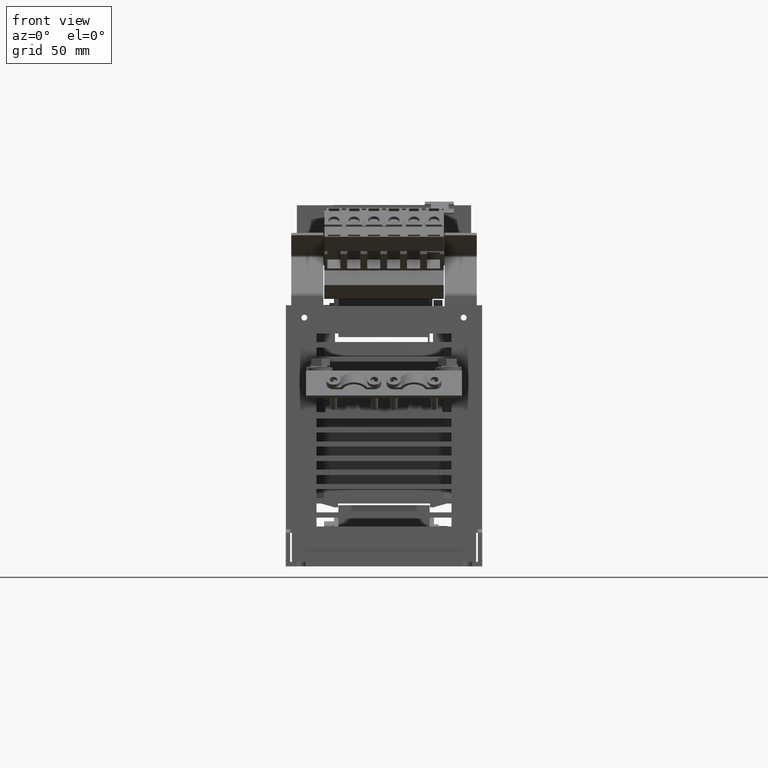
[diagram: clean part render]
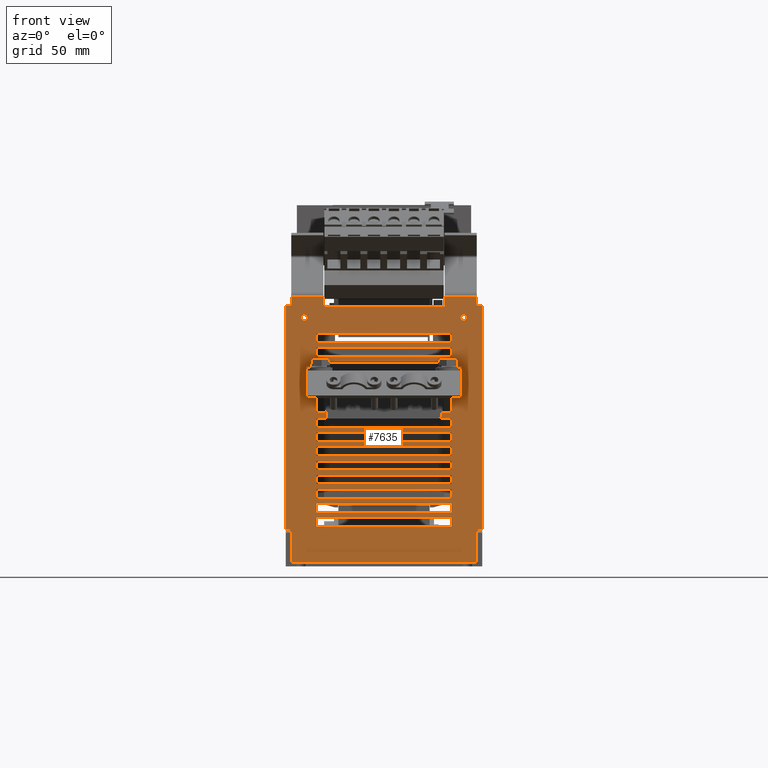
[diagram: same view with one face highlighted and labeled with its STEP entity id]
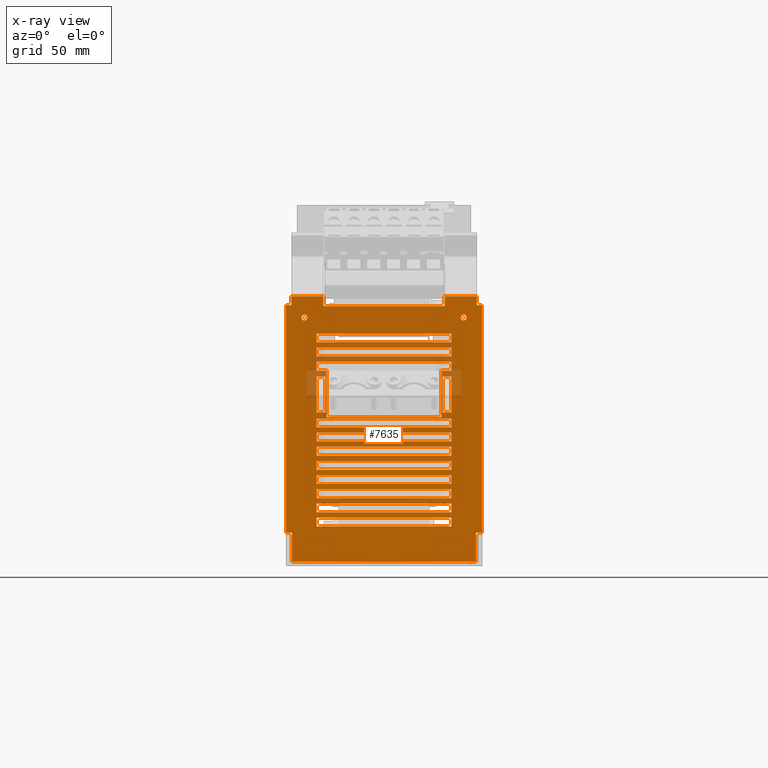
[diagram: x-ray of the same camera — body ghosted, the highlighted face saturated]
A machine part, front view. The second image highlights one B-rep face of the part: STEP entity #7635.
The next image is the same camera in x-ray: the body ghosted, the highlighted face saturated — about 3% of this face is hidden behind the body in this view.
In plain terms, the highlighted planar face has unit normal (0, 1, 0).
Its self-contained STEP definition (entity closure, byte-faithful):
#114=DIRECTION('',(0.E0,0.E0,1.E0));
#115=VECTOR('',#114,2.634595519445E1);
#116=CARTESIAN_POINT('',(3.25E1,-1.21E2,8.165E1));
#117=LINE('',#116,#115);
#926=DIRECTION('',(0.E0,0.E0,-1.E0));
#927=VECTOR('',#926,2.634595519445E1);
#928=CARTESIAN_POINT('',(-3.25E1,-1.21E2,1.079959551945E2));
#929=LINE('',#928,#927);
#990=DIRECTION('',(1.E0,0.E0,0.E0));
#991=VECTOR('',#990,7.62E1);
#992=CARTESIAN_POINT('',(-3.81E1,-1.21E2,2.5E1));
#993=LINE('',#992,#991);
#994=DIRECTION('',(0.E0,0.E0,1.E0));
#995=VECTOR('',#994,5.E0);
#996=CARTESIAN_POINT('',(-3.81E1,-1.21E2,2.E1));
#997=LINE('',#996,#995);
#998=DIRECTION('',(-1.E0,0.E0,0.E0));
#999=VECTOR('',#998,7.62E1);
#1000=CARTESIAN_POINT('',(3.81E1,-1.21E2,2.E1));
#1001=LINE('',#1000,#999);
#1002=DIRECTION('',(0.E0,0.E0,-1.E0));
#1003=VECTOR('',#1002,5.E0);
#1004=CARTESIAN_POINT('',(3.81E1,-1.21E2,2.5E1));
#1005=LINE('',#1004,#1003);
#1006=DIRECTION('',(1.E0,0.E0,0.E0));
#1007=VECTOR('',#1006,7.62E1);
#1008=CARTESIAN_POINT('',(-3.81E1,-1.21E2,3.3E1));
#1009=LINE('',#1008,#1007);
#1010=DIRECTION('',(0.E0,0.E0,1.E0));
#1011=VECTOR('',#1010,5.E0);
#1012=CARTESIAN_POINT('',(-3.81E1,-1.21E2,2.8E1));
#1013=LINE('',#1012,#1011);
#1014=DIRECTION('',(-1.E0,0.E0,0.E0));
#1015=VECTOR('',#1014,7.62E1);
#1016=CARTESIAN_POINT('',(3.81E1,-1.21E2,2.8E1));
#1017=LINE('',#1016,#1015);
#1018=DIRECTION('',(0.E0,0.E0,-1.E0));
#1019=VECTOR('',#1018,5.E0);
#1020=CARTESIAN_POINT('',(3.81E1,-1.21E2,3.3E1));
#1021=LINE('',#1020,#1019);
#1022=DIRECTION('',(1.E0,0.E0,0.E0));
#1023=VECTOR('',#1022,7.62E1);
#1024=CARTESIAN_POINT('',(-3.81E1,-1.21E2,4.1E1));
#1025=LINE('',#1024,#1023);
#1026=DIRECTION('',(0.E0,0.E0,1.E0));
#1027=VECTOR('',#1026,5.E0);
#1028=CARTESIAN_POINT('',(-3.81E1,-1.21E2,3.6E1));
#1029=LINE('',#1028,#1027);
#1030=DIRECTION('',(-1.E0,0.E0,0.E0));
#1031=VECTOR('',#1030,7.62E1);
#1032=CARTESIAN_POINT('',(3.81E1,-1.21E2,3.6E1));
#1033=LINE('',#1032,#1031);
#1034=DIRECTION('',(0.E0,0.E0,-1.E0));
#1035=VECTOR('',#1034,5.E0);
#1036=CARTESIAN_POINT('',(3.81E1,-1.21E2,4.1E1));
#1037=LINE('',#1036,#1035);
#1038=DIRECTION('',(1.E0,0.E0,0.E0));
#1039=VECTOR('',#1038,7.62E1);
#1040=CARTESIAN_POINT('',(-3.81E1,-1.21E2,4.9E1));
#1041=LINE('',#1040,#1039);
#1042=DIRECTION('',(0.E0,0.E0,1.E0));
#1043=VECTOR('',#1042,5.E0);
#1044=CARTESIAN_POINT('',(-3.81E1,-1.21E2,4.4E1));
#1045=LINE('',#1044,#1043);
#1046=DIRECTION('',(-1.E0,0.E0,0.E0));
#1047=VECTOR('',#1046,7.62E1);
#1048=CARTESIAN_POINT('',(3.81E1,-1.21E2,4.4E1));
#1049=LINE('',#1048,#1047);
#1050=DIRECTION('',(0.E0,0.E0,-1.E0));
#1051=VECTOR('',#1050,5.E0);
#1052=CARTESIAN_POINT('',(3.81E1,-1.21E2,4.9E1));
#1053=LINE('',#1052,#1051);
#1054=DIRECTION('',(1.E0,0.E0,0.E0));
#1055=VECTOR('',#1054,7.62E1);
#1056=CARTESIAN_POINT('',(-3.81E1,-1.21E2,5.7E1));
#1057=LINE('',#1056,#1055);
#1058=DIRECTION('',(0.E0,0.E0,1.E0));
#1059=VECTOR('',#1058,5.E0);
#1060=CARTESIAN_POINT('',(-3.81E1,-1.21E2,5.2E1));
#1061=LINE('',#1060,#1059);
#1062=DIRECTION('',(-1.E0,0.E0,0.E0));
#1063=VECTOR('',#1062,7.62E1);
#1064=CARTESIAN_POINT('',(3.81E1,-1.21E2,5.2E1));
#1065=LINE('',#1064,#1063);
#1066=DIRECTION('',(0.E0,0.E0,-1.E0));
#1067=VECTOR('',#1066,5.E0);
#1068=CARTESIAN_POINT('',(3.81E1,-1.21E2,5.7E1));
#1069=LINE('',#1068,#1067);
#1070=DIRECTION('',(1.E0,0.E0,0.E0));
#1071=VECTOR('',#1070,7.62E1);
#1072=CARTESIAN_POINT('',(-3.81E1,-1.21E2,6.5E1));
#1073=LINE('',#1072,#1071);
#1074=DIRECTION('',(0.E0,0.E0,1.E0));
#1075=VECTOR('',#1074,5.E0);
#1076=CARTESIAN_POINT('',(-3.81E1,-1.21E2,6.E1));
#1077=LINE('',#1076,#1075);
#1078=DIRECTION('',(-1.E0,0.E0,0.E0));
#1079=VECTOR('',#1078,7.62E1);
#1080=CARTESIAN_POINT('',(3.81E1,-1.21E2,6.E1));
#1081=LINE('',#1080,#1079);
#1082=DIRECTION('',(0.E0,0.E0,-1.E0));
#1083=VECTOR('',#1082,5.E0);
#1084=CARTESIAN_POINT('',(3.81E1,-1.21E2,6.5E1));
#1085=LINE('',#1084,#1083);
#1086=DIRECTION('',(1.E0,0.E0,0.E0));
#1087=VECTOR('',#1086,7.62E1);
#1088=CARTESIAN_POINT('',(-3.81E1,-1.21E2,7.3E1));
#1089=LINE('',#1088,#1087);
#1090=DIRECTION('',(0.E0,0.E0,1.E0));
#1091=VECTOR('',#1090,5.E0);
#1092=CARTESIAN_POINT('',(-3.81E1,-1.21E2,6.8E1));
#1093=LINE('',#1092,#1091);
#1094=DIRECTION('',(-1.E0,0.E0,0.E0));
#1095=VECTOR('',#1094,7.62E1);
#1096=CARTESIAN_POINT('',(3.81E1,-1.21E2,6.8E1));
#1097=LINE('',#1096,#1095);
#1098=DIRECTION('',(0.E0,0.E0,-1.E0));
#1099=VECTOR('',#1098,5.E0);
#1100=CARTESIAN_POINT('',(3.81E1,-1.21E2,7.3E1));
#1101=LINE('',#1100,#1099);
#1102=DIRECTION('',(1.E0,0.E0,0.E0));
#1103=VECTOR('',#1102,7.62E1);
#1104=CARTESIAN_POINT('',(-3.81E1,-1.21E2,8.1E1));
#1105=LINE('',#1104,#1103);
#1106=DIRECTION('',(0.E0,0.E0,1.E0));
#1107=VECTOR('',#1106,5.E0);
#1108=CARTESIAN_POINT('',(-3.81E1,-1.21E2,7.6E1));
#1109=LINE('',#1108,#1107);
#1110=DIRECTION('',(-1.E0,0.E0,0.E0));
#1111=VECTOR('',#1110,7.62E1);
#1112=CARTESIAN_POINT('',(3.81E1,-1.21E2,7.6E1));
#1113=LINE('',#1112,#1111);
#1114=DIRECTION('',(0.E0,0.E0,-1.E0));
#1115=VECTOR('',#1114,5.E0);
#1116=CARTESIAN_POINT('',(3.81E1,-1.21E2,8.1E1));
#1117=LINE('',#1116,#1115);
#1118=DIRECTION('',(1.E0,0.E0,0.E0));
#1119=VECTOR('',#1118,7.62E1);
#1120=CARTESIAN_POINT('',(-3.81E1,-1.21E2,1.21E2));
#1121=LINE('',#1120,#1119);
#1122=DIRECTION('',(0.E0,0.E0,1.E0));
#1123=VECTOR('',#1122,5.E0);
#1124=CARTESIAN_POINT('',(-3.81E1,-1.21E2,1.16E2));
#1125=LINE('',#1124,#1123);
#1126=DIRECTION('',(-1.E0,0.E0,0.E0));
#1127=VECTOR('',#1126,7.62E1);
#1128=CARTESIAN_POINT('',(3.81E1,-1.21E2,1.16E2));
#1129=LINE('',#1128,#1127);
#1130=DIRECTION('',(0.E0,0.E0,-1.E0));
#1131=VECTOR('',#1130,5.E0);
#1132=CARTESIAN_POINT('',(3.81E1,-1.21E2,1.21E2));
#1133=LINE('',#1132,#1131);
#1134=DIRECTION('',(1.E0,0.E0,0.E0));
#1135=VECTOR('',#1134,7.62E1);
#1136=CARTESIAN_POINT('',(-3.81E1,-1.21E2,1.29E2));
#1137=LINE('',#1136,#1135);
#1138=DIRECTION('',(0.E0,0.E0,1.E0));
#1139=VECTOR('',#1138,5.E0);
#1140=CARTESIAN_POINT('',(-3.81E1,-1.21E2,1.24E2));
#1141=LINE('',#1140,#1139);
#1142=DIRECTION('',(-1.E0,0.E0,0.E0));
#1143=VECTOR('',#1142,7.62E1);
#1144=CARTESIAN_POINT('',(3.81E1,-1.21E2,1.24E2));
#1145=LINE('',#1144,#1143);
#1146=DIRECTION('',(0.E0,0.E0,-1.E0));
#1147=VECTOR('',#1146,5.E0);
#1148=CARTESIAN_POINT('',(3.81E1,-1.21E2,1.29E2));
#1149=LINE('',#1148,#1147);
#1150=CARTESIAN_POINT('',(-4.5E1,-1.21E2,1.38E2));
#1151=DIRECTION('',(0.E0,1.E0,0.E0));
#1152=DIRECTION('',(1.E0,0.E0,0.E0));
#1153=AXIS2_PLACEMENT_3D('',#1150,#1151,#1152);
#1155=CARTESIAN_POINT('',(-4.5E1,-1.21E2,1.38E2));
#1156=DIRECTION('',(0.E0,1.E0,0.E0));
#1157=DIRECTION('',(-1.E0,0.E0,0.E0));
#1158=AXIS2_PLACEMENT_3D('',#1155,#1156,#1157);
#1160=CARTESIAN_POINT('',(4.5E1,-1.21E2,1.38E2));
#1161=DIRECTION('',(0.E0,1.E0,0.E0));
#1162=DIRECTION('',(1.E0,0.E0,0.E0));
#1163=AXIS2_PLACEMENT_3D('',#1160,#1161,#1162);
#1165=CARTESIAN_POINT('',(4.5E1,-1.21E2,1.38E2));
#1166=DIRECTION('',(0.E0,1.E0,0.E0));
#1167=DIRECTION('',(-1.E0,0.E0,0.E0));
#1168=AXIS2_PLACEMENT_3D('',#1165,#1166,#1167);
#1170=DIRECTION('',(2.666657185233E-3,0.E0,9.999964444634E-1));
#1171=VECTOR('',#1170,5.000017777746E0);
#1172=CARTESIAN_POINT('',(5.238666666667E1,-1.21E2,1.45E2));
#1173=LINE('',#1172,#1171);
#1174=DIRECTION('',(0.E0,0.E0,-1.E0));
#1175=VECTOR('',#1174,1.285E2);
#1176=CARTESIAN_POINT('',(5.54E1,-1.21E2,1.45E2));
#1177=LINE('',#1176,#1175);
#1178=DIRECTION('',(-1.E0,-2.540677243481E-14,0.E0));
#1179=VECTOR('',#1178,3.356E0);
#1180=CARTESIAN_POINT('',(5.54E1,-1.21E2,1.65E1));
#1181=LINE('',#1180,#1179);
#1182=DIRECTION('',(-2.666657185235E-3,0.E0,-9.999964444634E-1));
#1183=VECTOR('',#1182,1.650005866656E1);
#1184=CARTESIAN_POINT('',(5.2044E1,-1.21E2,1.65E1));
#1185=LINE('',#1184,#1183);
#1186=DIRECTION('',(-2.666657185236E-3,0.E0,9.999964444634E-1));
#1187=VECTOR('',#1186,1.650005866656E1);
#1188=CARTESIAN_POINT('',(-5.2E1,-1.21E2,0.E0));
#1189=LINE('',#1188,#1187);
#1190=DIRECTION('',(-1.E0,-2.964123450727E-14,0.E0));
#1191=VECTOR('',#1190,3.356E0);
#1192=CARTESIAN_POINT('',(-5.2044E1,-1.21E2,1.65E1));
#1193=LINE('',#1192,#1191);
#1194=DIRECTION('',(0.E0,0.E0,1.E0));
#1195=VECTOR('',#1194,1.285E2);
#1196=CARTESIAN_POINT('',(-5.54E1,-1.21E2,1.65E1));
#1197=LINE('',#1196,#1195);
#1198=DIRECTION('',(2.666657185236E-3,5.684321675198E-14,-9.999964444634E-1));
#1199=VECTOR('',#1198,5.000017777744E0);
#1200=CARTESIAN_POINT('',(-5.24E1,-1.21E2,1.5E2));
#1201=LINE('',#1200,#1199);
#1202=DIRECTION('',(-1.E0,-1.096154082715E-14,-1.143132114832E-13));
#1203=VECTOR('',#1202,1.815E1);
#1204=CARTESIAN_POINT('',(-3.425E1,-1.21E2,1.5E2));
#1205=LINE('',#1204,#1203);
#1206=DIRECTION('',(0.E0,-1.532490472243E-14,1.E0));
#1207=VECTOR('',#1206,5.563827628008E0);
#1208=CARTESIAN_POINT('',(-3.425E1,-1.21E2,1.444361723720E2));
#1209=LINE('',#1208,#1207);
#1210=DIRECTION('',(-1.E0,0.E0,0.E0));
#1211=VECTOR('',#1210,6.85E1);
#1212=CARTESIAN_POINT('',(3.425E1,-1.21E2,1.444361723720E2));
#1213=LINE('',#1212,#1211);
#1214=DIRECTION('',(0.E0,0.E0,-1.E0));
#1215=VECTOR('',#1214,5.563827628008E0);
#1216=CARTESIAN_POINT('',(3.425E1,-1.21E2,1.5E2));
#1217=LINE('',#1216,#1215);
#1218=DIRECTION('',(1.E0,0.E0,-2.035714725043E-14));
#1219=VECTOR('',#1218,1.815E1);
#1220=CARTESIAN_POINT('',(3.425E1,-1.21E2,1.5E2));
#1221=LINE('',#1220,#1219);
#1222=DIRECTION('',(-1.E0,0.E0,0.E0));
#1223=VECTOR('',#1222,6.5E1);
#1224=CARTESIAN_POINT('',(3.25E1,-1.21E2,8.165E1));
#1225=LINE('',#1224,#1223);
#1226=DIRECTION('',(0.E0,0.E0,1.E0));
#1227=VECTOR('',#1226,5.E0);
#1228=CARTESIAN_POINT('',(3.81E1,-1.21E2,1.079959551945E2));
#1229=LINE('',#1228,#1227);
#1230=DIRECTION('',(1.E0,0.E0,0.E0));
#1231=VECTOR('',#1230,7.62E1);
#1232=CARTESIAN_POINT('',(-3.81E1,-1.21E2,1.129959551945E2));
#1233=LINE('',#1232,#1231);
#1234=DIRECTION('',(0.E0,0.E0,-1.E0));
#1235=VECTOR('',#1234,5.E0);
#1236=CARTESIAN_POINT('',(-3.81E1,-1.21E2,1.129959551945E2));
#1237=LINE('',#1236,#1235);
#1238=DIRECTION('',(-1.E0,0.E0,0.E0));
#1239=VECTOR('',#1238,5.E0);
#1240=CARTESIAN_POINT('',(3.81E1,-1.21E2,8.45E1));
#1241=LINE('',#1240,#1239);
#1246=DIRECTION('',(0.E0,0.E0,1.E0));
#1247=VECTOR('',#1246,2.000194501269E1);
#1248=CARTESIAN_POINT('',(3.31E1,-1.21E2,8.45E1));
#1249=LINE('',#1248,#1247);
#1254=DIRECTION('',(1.E0,0.E0,0.E0));
#1255=VECTOR('',#1254,5.E0);
#1256=CARTESIAN_POINT('',(3.31E1,-1.21E2,1.045019450127E2));
#1257=LINE('',#1256,#1255);
#1262=DIRECTION('',(0.E0,0.E0,-1.E0));
#1263=VECTOR('',#1262,2.000194501269E1);
#1264=CARTESIAN_POINT('',(3.81E1,-1.21E2,1.045019450127E2));
#1265=LINE('',#1264,#1263);
#1590=DIRECTION('',(0.E0,0.E0,1.E0));
#1591=VECTOR('',#1590,2.000194501269E1);
#1592=CARTESIAN_POINT('',(-3.81E1,-1.21E2,8.45E1));
#1593=LINE('',#1592,#1591);
#1598=DIRECTION('',(1.E0,0.E0,0.E0));
#1599=VECTOR('',#1598,5.E0);
#1600=CARTESIAN_POINT('',(-3.81E1,-1.21E2,1.045019450127E2));
#1601=LINE('',#1600,#1599);
#1606=DIRECTION('',(0.E0,0.E0,-1.E0));
#1607=VECTOR('',#1606,2.000194501269E1);
#1608=CARTESIAN_POINT('',(-3.31E1,-1.21E2,1.045019450127E2));
#1609=LINE('',#1608,#1607);
#1614=DIRECTION('',(-1.E0,0.E0,0.E0));
#1615=VECTOR('',#1614,5.E0);
#1616=CARTESIAN_POINT('',(-3.31E1,-1.21E2,8.45E1));
#1617=LINE('',#1616,#1615);
#1634=DIRECTION('',(-1.E0,0.E0,0.E0));
#1635=VECTOR('',#1634,5.6E0);
#1636=CARTESIAN_POINT('',(3.81E1,-1.21E2,1.079959551945E2));
#1637=LINE('',#1636,#1635);
#1642=DIRECTION('',(1.E0,0.E0,0.E0));
#1643=VECTOR('',#1642,5.6E0);
#1644=CARTESIAN_POINT('',(-3.81E1,-1.21E2,1.079959551945E2));
#1645=LINE('',#1644,#1643);
#1872=DIRECTION('',(-1.E0,-1.886396643611E-14,0.E0));
#1873=VECTOR('',#1872,3.013333333333E0);
#1874=CARTESIAN_POINT('',(5.54E1,-1.21E2,1.45E2));
#1875=LINE('',#1874,#1873);
#1900=DIRECTION('',(-1.E0,-8.488784896249E-14,0.E0));
#1901=VECTOR('',#1900,3.013333333333E0);
#1902=CARTESIAN_POINT('',(-5.238666666667E1,-1.21E2,1.45E2));
#1903=LINE('',#1902,#1901);
#2224=DIRECTION('',(1.E0,0.E0,0.E0));
#2225=VECTOR('',#2224,1.04E2);
#2226=CARTESIAN_POINT('',(-5.2E1,-1.21E2,0.E0));
#2227=LINE('',#2226,#2225);
#5306=CARTESIAN_POINT('',(-5.54E1,-1.21E2,1.65E1));
#5307=CARTESIAN_POINT('',(-5.54E1,-1.21E2,1.45E2));
#5308=VERTEX_POINT('',#5306);
#5309=VERTEX_POINT('',#5307);
#5310=CARTESIAN_POINT('',(5.54E1,-1.21E2,1.45E2));
#5311=CARTESIAN_POINT('',(5.54E1,-1.21E2,1.65E1));
#5312=VERTEX_POINT('',#5310);
#5313=VERTEX_POINT('',#5311);
#5330=CARTESIAN_POINT('',(4.665E1,-1.21E2,1.38E2));
#5331=CARTESIAN_POINT('',(4.335E1,-1.21E2,1.38E2));
#5332=VERTEX_POINT('',#5330);
#5333=VERTEX_POINT('',#5331);
#5334=CARTESIAN_POINT('',(3.425E1,-1.21E2,1.444361723720E2));
#5335=CARTESIAN_POINT('',(-3.425E1,-1.21E2,1.444361723720E2));
#5336=VERTEX_POINT('',#5334);
#5337=VERTEX_POINT('',#5335);
#5338=CARTESIAN_POINT('',(-3.81E1,-1.21E2,1.29E2));
#5339=CARTESIAN_POINT('',(3.81E1,-1.21E2,1.29E2));
#5340=VERTEX_POINT('',#5338);
#5341=VERTEX_POINT('',#5339);
#5342=CARTESIAN_POINT('',(3.81E1,-1.21E2,1.24E2));
#5343=VERTEX_POINT('',#5342);
#5344=CARTESIAN_POINT('',(-3.81E1,-1.21E2,1.24E2));
#5345=VERTEX_POINT('',#5344);
#5346=CARTESIAN_POINT('',(-3.81E1,-1.21E2,1.21E2));
#5347=CARTESIAN_POINT('',(3.81E1,-1.21E2,1.21E2));
#5348=VERTEX_POINT('',#5346);
#5349=VERTEX_POINT('',#5347);
#5350=CARTESIAN_POINT('',(3.81E1,-1.21E2,1.16E2));
#5351=VERTEX_POINT('',#5350);
#5352=CARTESIAN_POINT('',(-3.81E1,-1.21E2,1.16E2));
#5353=VERTEX_POINT('',#5352);
#5354=CARTESIAN_POINT('',(-3.81E1,-1.21E2,1.129959551945E2));
#5355=CARTESIAN_POINT('',(3.81E1,-1.21E2,1.129959551945E2));
#5356=VERTEX_POINT('',#5354);
#5357=VERTEX_POINT('',#5355);
#5358=CARTESIAN_POINT('',(-3.81E1,-1.21E2,8.1E1));
#5359=CARTESIAN_POINT('',(3.81E1,-1.21E2,8.1E1));
#5360=VERTEX_POINT('',#5358);
#5361=VERTEX_POINT('',#5359);
#5362=CARTESIAN_POINT('',(3.81E1,-1.21E2,7.6E1));
#5363=VERTEX_POINT('',#5362);
#5364=CARTESIAN_POINT('',(-3.81E1,-1.21E2,7.6E1));
#5365=VERTEX_POINT('',#5364);
#5366=CARTESIAN_POINT('',(-3.81E1,-1.21E2,7.3E1));
#5367=CARTESIAN_POINT('',(3.81E1,-1.21E2,7.3E1));
#5368=VERTEX_POINT('',#5366);
#5369=VERTEX_POINT('',#5367);
#5370=CARTESIAN_POINT('',(3.81E1,-1.21E2,6.8E1));
#5371=VERTEX_POINT('',#5370);
#5372=CARTESIAN_POINT('',(-3.81E1,-1.21E2,6.8E1));
#5373=VERTEX_POINT('',#5372);
#5374=CARTESIAN_POINT('',(-3.81E1,-1.21E2,6.5E1));
#5375=CARTESIAN_POINT('',(3.81E1,-1.21E2,6.5E1));
#5376=VERTEX_POINT('',#5374);
#5377=VERTEX_POINT('',#5375);
#5378=CARTESIAN_POINT('',(3.81E1,-1.21E2,6.E1));
#5379=VERTEX_POINT('',#5378);
#5380=CARTESIAN_POINT('',(-3.81E1,-1.21E2,6.E1));
#5381=VERTEX_POINT('',#5380);
#5382=CARTESIAN_POINT('',(-3.81E1,-1.21E2,5.7E1));
#5383=CARTESIAN_POINT('',(3.81E1,-1.21E2,5.7E1));
#5384=VERTEX_POINT('',#5382);
#5385=VERTEX_POINT('',#5383);
#5386=CARTESIAN_POINT('',(3.81E1,-1.21E2,5.2E1));
#5387=VERTEX_POINT('',#5386);
#5388=CARTESIAN_POINT('',(-3.81E1,-1.21E2,5.2E1));
#5389=VERTEX_POINT('',#5388);
#5390=CARTESIAN_POINT('',(-3.81E1,-1.21E2,4.9E1));
#5391=CARTESIAN_POINT('',(3.81E1,-1.21E2,4.9E1));
#5392=VERTEX_POINT('',#5390);
#5393=VERTEX_POINT('',#5391);
#5394=CARTESIAN_POINT('',(3.81E1,-1.21E2,4.4E1));
#5395=VERTEX_POINT('',#5394);
#5396=CARTESIAN_POINT('',(-3.81E1,-1.21E2,4.4E1));
#5397=VERTEX_POINT('',#5396);
#5398=CARTESIAN_POINT('',(-3.81E1,-1.21E2,4.1E1));
#5399=CARTESIAN_POINT('',(3.81E1,-1.21E2,4.1E1));
#5400=VERTEX_POINT('',#5398);
#5401=VERTEX_POINT('',#5399);
#5402=CARTESIAN_POINT('',(3.81E1,-1.21E2,3.6E1));
#5403=VERTEX_POINT('',#5402);
#5404=CARTESIAN_POINT('',(-3.81E1,-1.21E2,3.6E1));
#5405=VERTEX_POINT('',#5404);
#5406=CARTESIAN_POINT('',(-3.81E1,-1.21E2,3.3E1));
#5407=CARTESIAN_POINT('',(3.81E1,-1.21E2,3.3E1));
#5408=VERTEX_POINT('',#5406);
#5409=VERTEX_POINT('',#5407);
#5410=CARTESIAN_POINT('',(3.81E1,-1.21E2,2.8E1));
#5411=VERTEX_POINT('',#5410);
#5412=CARTESIAN_POINT('',(-3.81E1,-1.21E2,2.8E1));
#5413=VERTEX_POINT('',#5412);
#5414=CARTESIAN_POINT('',(-3.81E1,-1.21E2,2.5E1));
#5415=CARTESIAN_POINT('',(3.81E1,-1.21E2,2.5E1));
#5416=VERTEX_POINT('',#5414);
#5417=VERTEX_POINT('',#5415);
#5418=CARTESIAN_POINT('',(3.81E1,-1.21E2,2.E1));
#5419=VERTEX_POINT('',#5418);
#5420=CARTESIAN_POINT('',(-3.81E1,-1.21E2,2.E1));
#5421=VERTEX_POINT('',#5420);
#5527=CARTESIAN_POINT('',(-5.2E1,-1.21E2,0.E0));
#5529=VERTEX_POINT('',#5527);
#5540=CARTESIAN_POINT('',(-5.2044E1,-1.21E2,1.65E1));
#5541=VERTEX_POINT('',#5540);
#5568=CARTESIAN_POINT('',(5.2044E1,-1.21E2,1.65E1));
#5569=VERTEX_POINT('',#5568);
#5570=CARTESIAN_POINT('',(5.2E1,-1.21E2,0.E0));
#5571=VERTEX_POINT('',#5570);
#5598=CARTESIAN_POINT('',(-5.238666666667E1,-1.21E2,1.45E2));
#5600=VERTEX_POINT('',#5598);
#5602=CARTESIAN_POINT('',(5.238666666667E1,-1.21E2,1.45E2));
#5604=VERTEX_POINT('',#5602);
#5642=CARTESIAN_POINT('',(-3.425E1,-1.21E2,1.5E2));
#5643=CARTESIAN_POINT('',(-5.24E1,-1.21E2,1.5E2));
#5644=VERTEX_POINT('',#5642);
#5645=VERTEX_POINT('',#5643);
#5682=CARTESIAN_POINT('',(3.425E1,-1.21E2,1.5E2));
#5683=CARTESIAN_POINT('',(5.24E1,-1.21E2,1.5E2));
#5684=VERTEX_POINT('',#5682);
#5685=VERTEX_POINT('',#5683);
#5714=CARTESIAN_POINT('',(-3.81E1,-1.21E2,8.45E1));
#5715=CARTESIAN_POINT('',(-3.81E1,-1.21E2,1.045019450127E2));
#5716=VERTEX_POINT('',#5714);
#5717=VERTEX_POINT('',#5715);
#5718=CARTESIAN_POINT('',(-3.31E1,-1.21E2,1.045019450127E2));
#5719=VERTEX_POINT('',#5718);
#5720=CARTESIAN_POINT('',(-3.31E1,-1.21E2,8.45E1));
#5721=VERTEX_POINT('',#5720);
#5722=CARTESIAN_POINT('',(-3.81E1,-1.21E2,1.079959551945E2));
#5723=CARTESIAN_POINT('',(-3.25E1,-1.21E2,1.079959551945E2));
#5724=VERTEX_POINT('',#5722);
#5725=VERTEX_POINT('',#5723);
#5734=CARTESIAN_POINT('',(-3.25E1,-1.21E2,8.165E1));
#5736=VERTEX_POINT('',#5734);
#5742=CARTESIAN_POINT('',(3.81E1,-1.21E2,1.079959551945E2));
#5743=CARTESIAN_POINT('',(3.25E1,-1.21E2,1.079959551945E2));
#5744=VERTEX_POINT('',#5742);
#5745=VERTEX_POINT('',#5743);
#5746=CARTESIAN_POINT('',(3.81E1,-1.21E2,8.45E1));
#5747=CARTESIAN_POINT('',(3.31E1,-1.21E2,8.45E1));
#5748=VERTEX_POINT('',#5746);
#5749=VERTEX_POINT('',#5747);
#5750=CARTESIAN_POINT('',(3.31E1,-1.21E2,1.045019450127E2));
#5751=VERTEX_POINT('',#5750);
#5752=CARTESIAN_POINT('',(3.81E1,-1.21E2,1.045019450127E2));
#5753=VERTEX_POINT('',#5752);
#5762=CARTESIAN_POINT('',(3.25E1,-1.21E2,8.165E1));
#5764=VERTEX_POINT('',#5762);
#6209=CARTESIAN_POINT('',(-4.335E1,-1.21E2,1.38E2));
#6210=CARTESIAN_POINT('',(-4.665E1,-1.21E2,1.38E2));
#6211=VERTEX_POINT('',#6209);
#6212=VERTEX_POINT('',#6210);
#7449=CARTESIAN_POINT('',(4.662469205667E-13,-1.21E2,1.728216439659E-14));
#7450=DIRECTION('',(0.E0,1.E0,0.E0));
#7451=DIRECTION('',(-1.E0,0.E0,0.E0));
#7452=AXIS2_PLACEMENT_3D('',#7449,#7450,#7451);
#7453=PLANE('',#7452);
#7455=ORIENTED_EDGE('',*,*,#7454,.F.);
#7457=ORIENTED_EDGE('',*,*,#7456,.F.);
#7459=ORIENTED_EDGE('',*,*,#7458,.T.);
#7461=ORIENTED_EDGE('',*,*,#7460,.T.);
#7463=ORIENTED_EDGE('',*,*,#7462,.T.);
#7465=ORIENTED_EDGE('',*,*,#7464,.F.);
#7467=ORIENTED_EDGE('',*,*,#7466,.T.);
#7469=ORIENTED_EDGE('',*,*,#7468,.T.);
#7471=ORIENTED_EDGE('',*,*,#7470,.T.);
#7473=ORIENTED_EDGE('',*,*,#7472,.F.);
#7475=ORIENTED_EDGE('',*,*,#7474,.F.);
#7477=ORIENTED_EDGE('',*,*,#7476,.F.);
#7479=ORIENTED_EDGE('',*,*,#7478,.F.);
#7481=ORIENTED_EDGE('',*,*,#7480,.F.);
#7483=ORIENTED_EDGE('',*,*,#7482,.F.);
#7485=ORIENTED_EDGE('',*,*,#7484,.T.);
#7486=EDGE_LOOP('',(#7455,#7457,#7459,#7461,#7463,#7465,#7467,#7469,#7471,#7473,
#7475,#7477,#7479,#7481,#7483,#7485));
#7487=FACE_OUTER_BOUND('',#7486,.F.);
#7489=ORIENTED_EDGE('',*,*,#7488,.F.);
#7491=ORIENTED_EDGE('',*,*,#7490,.F.);
#7493=ORIENTED_EDGE('',*,*,#7492,.F.);
#7495=ORIENTED_EDGE('',*,*,#7494,.F.);
#7496=EDGE_LOOP('',(#7489,#7491,#7493,#7495));
#7497=FACE_BOUND('',#7496,.F.);
#7499=ORIENTED_EDGE('',*,*,#7498,.F.);
#7501=ORIENTED_EDGE('',*,*,#7500,.F.);
#7503=ORIENTED_EDGE('',*,*,#7502,.F.);
#7505=ORIENTED_EDGE('',*,*,#7504,.F.);
#7506=EDGE_LOOP('',(#7499,#7501,#7503,#7505));
#7507=FACE_BOUND('',#7506,.F.);
#7509=ORIENTED_EDGE('',*,*,#7508,.F.);
#7511=ORIENTED_EDGE('',*,*,#7510,.F.);
#7513=ORIENTED_EDGE('',*,*,#7512,.F.);
#7515=ORIENTED_EDGE('',*,*,#7514,.F.);
#7516=EDGE_LOOP('',(#7509,#7511,#7513,#7515));
#7517=FACE_BOUND('',#7516,.F.);
#7519=ORIENTED_EDGE('',*,*,#7518,.F.);
#7521=ORIENTED_EDGE('',*,*,#7520,.F.);
#7523=ORIENTED_EDGE('',*,*,#7522,.F.);
#7525=ORIENTED_EDGE('',*,*,#7524,.F.);
#7526=EDGE_LOOP('',(#7519,#7521,#7523,#7525));
#7527=FACE_BOUND('',#7526,.F.);
#7529=ORIENTED_EDGE('',*,*,#7528,.F.);
#7531=ORIENTED_EDGE('',*,*,#7530,.F.);
#7533=ORIENTED_EDGE('',*,*,#7532,.F.);
#7535=ORIENTED_EDGE('',*,*,#7534,.F.);
#7536=EDGE_LOOP('',(#7529,#7531,#7533,#7535));
#7537=FACE_BOUND('',#7536,.F.);
#7539=ORIENTED_EDGE('',*,*,#7538,.F.);
#7541=ORIENTED_EDGE('',*,*,#7540,.F.);
#7543=ORIENTED_EDGE('',*,*,#7542,.F.);
#7545=ORIENTED_EDGE('',*,*,#7544,.F.);
#7546=EDGE_LOOP('',(#7539,#7541,#7543,#7545));
#7547=FACE_BOUND('',#7546,.F.);
#7549=ORIENTED_EDGE('',*,*,#7548,.F.);
#7551=ORIENTED_EDGE('',*,*,#7550,.F.);
#7553=ORIENTED_EDGE('',*,*,#7552,.F.);
#7555=ORIENTED_EDGE('',*,*,#7554,.F.);
#7556=EDGE_LOOP('',(#7549,#7551,#7553,#7555));
#7557=FACE_BOUND('',#7556,.F.);
#7559=ORIENTED_EDGE('',*,*,#7558,.F.);
#7561=ORIENTED_EDGE('',*,*,#7560,.F.);
#7563=ORIENTED_EDGE('',*,*,#7562,.F.);
#7565=ORIENTED_EDGE('',*,*,#7564,.F.);
#7566=EDGE_LOOP('',(#7559,#7561,#7563,#7565));
#7567=FACE_BOUND('',#7566,.F.);
#7569=ORIENTED_EDGE('',*,*,#7568,.F.);
#7571=ORIENTED_EDGE('',*,*,#7570,.F.);
#7573=ORIENTED_EDGE('',*,*,#7572,.F.);
#7575=ORIENTED_EDGE('',*,*,#7574,.F.);
#7576=EDGE_LOOP('',(#7569,#7571,#7573,#7575));
#7577=FACE_BOUND('',#7576,.F.);
#7579=ORIENTED_EDGE('',*,*,#7578,.F.);
#7581=ORIENTED_EDGE('',*,*,#7580,.F.);
#7583=ORIENTED_EDGE('',*,*,#7582,.F.);
#7585=ORIENTED_EDGE('',*,*,#7584,.F.);
#7586=EDGE_LOOP('',(#7579,#7581,#7583,#7585));
#7587=FACE_BOUND('',#7586,.F.);
#7589=ORIENTED_EDGE('',*,*,#7588,.F.);
#7591=ORIENTED_EDGE('',*,*,#7590,.F.);
#7593=ORIENTED_EDGE('',*,*,#7592,.F.);
#7595=ORIENTED_EDGE('',*,*,#7594,.F.);
#7596=EDGE_LOOP('',(#7589,#7591,#7593,#7595));
#7597=FACE_BOUND('',#7596,.F.);
#7599=ORIENTED_EDGE('',*,*,#7598,.F.);
#7601=ORIENTED_EDGE('',*,*,#7600,.F.);
#7602=EDGE_LOOP('',(#7599,#7601));
#7603=FACE_BOUND('',#7602,.F.);
#7605=ORIENTED_EDGE('',*,*,#7604,.F.);
#7607=ORIENTED_EDGE('',*,*,#7606,.F.);
#7608=EDGE_LOOP('',(#7605,#7607));
#7609=FACE_BOUND('',#7608,.F.);
#7611=ORIENTED_EDGE('',*,*,#7610,.F.);
#7613=ORIENTED_EDGE('',*,*,#7612,.F.);
#7615=ORIENTED_EDGE('',*,*,#7614,.F.);
#7617=ORIENTED_EDGE('',*,*,#7616,.F.);
#7618=EDGE_LOOP('',(#7611,#7613,#7615,#7617));
#7619=FACE_BOUND('',#7618,.F.);
#7620=ORIENTED_EDGE('',*,*,#7442,.F.);
#7621=ORIENTED_EDGE('',*,*,#6295,.T.);
#7623=ORIENTED_EDGE('',*,*,#7622,.F.);
#7625=ORIENTED_EDGE('',*,*,#7624,.T.);
#7627=ORIENTED_EDGE('',*,*,#7626,.F.);
#7629=ORIENTED_EDGE('',*,*,#7628,.T.);
#7631=ORIENTED_EDGE('',*,*,#7630,.T.);
#7632=ORIENTED_EDGE('',*,*,#7380,.T.);
#7633=EDGE_LOOP('',(#7620,#7621,#7623,#7625,#7627,#7629,#7631,#7632));
#7634=FACE_BOUND('',#7633,.F.);
#7635=ADVANCED_FACE('',(#7487,#7497,#7507,#7517,#7527,#7537,#7547,#7557,#7567,
#7577,#7587,#7597,#7603,#7609,#7619,#7634),#7453,.F.);
#1154=CIRCLE('',#1153,1.65E0);
#1159=CIRCLE('',#1158,1.65E0);
#1164=CIRCLE('',#1163,1.65E0);
#1169=CIRCLE('',#1168,1.65E0);
#6295=EDGE_CURVE('',#5764,#5745,#117,.T.);
#7380=EDGE_CURVE('',#5725,#5736,#929,.T.);
#7442=EDGE_CURVE('',#5764,#5736,#1225,.T.);
#7454=EDGE_CURVE('',#5604,#5685,#1173,.T.);
#7456=EDGE_CURVE('',#5312,#5604,#1875,.T.);
#7458=EDGE_CURVE('',#5312,#5313,#1177,.T.);
#7460=EDGE_CURVE('',#5313,#5569,#1181,.T.);
#7462=EDGE_CURVE('',#5569,#5571,#1185,.T.);
#7464=EDGE_CURVE('',#5529,#5571,#2227,.T.);
#7466=EDGE_CURVE('',#5529,#5541,#1189,.T.);
#7468=EDGE_CURVE('',#5541,#5308,#1193,.T.);
#7470=EDGE_CURVE('',#5308,#5309,#1197,.T.);
#7472=EDGE_CURVE('',#5600,#5309,#1903,.T.);
#7474=EDGE_CURVE('',#5645,#5600,#1201,.T.);
#7476=EDGE_CURVE('',#5644,#5645,#1205,.T.);
#7478=EDGE_CURVE('',#5337,#5644,#1209,.T.);
#7480=EDGE_CURVE('',#5336,#5337,#1213,.T.);
#7482=EDGE_CURVE('',#5684,#5336,#1217,.T.);
#7484=EDGE_CURVE('',#5684,#5685,#1221,.T.);
#7488=EDGE_CURVE('',#5716,#5717,#1593,.T.);
#7490=EDGE_CURVE('',#5721,#5716,#1617,.T.);
#7492=EDGE_CURVE('',#5719,#5721,#1609,.T.);
#7494=EDGE_CURVE('',#5717,#5719,#1601,.T.);
#7498=EDGE_CURVE('',#5416,#5417,#993,.T.);
#7500=EDGE_CURVE('',#5421,#5416,#997,.T.);
#7502=EDGE_CURVE('',#5419,#5421,#1001,.T.);
#7504=EDGE_CURVE('',#5417,#5419,#1005,.T.);
#7508=EDGE_CURVE('',#5408,#5409,#1009,.T.);
#7510=EDGE_CURVE('',#5413,#5408,#1013,.T.);
#7512=EDGE_CURVE('',#5411,#5413,#1017,.T.);
#7514=EDGE_CURVE('',#5409,#5411,#1021,.T.);
#7518=EDGE_CURVE('',#5400,#5401,#1025,.T.);
#7520=EDGE_CURVE('',#5405,#5400,#1029,.T.);
#7522=EDGE_CURVE('',#5403,#5405,#1033,.T.);
#7524=EDGE_CURVE('',#5401,#5403,#1037,.T.);
#7528=EDGE_CURVE('',#5392,#5393,#1041,.T.);
#7530=EDGE_CURVE('',#5397,#5392,#1045,.T.);
#7532=EDGE_CURVE('',#5395,#5397,#1049,.T.);
#7534=EDGE_CURVE('',#5393,#5395,#1053,.T.);
#7538=EDGE_CURVE('',#5384,#5385,#1057,.T.);
#7540=EDGE_CURVE('',#5389,#5384,#1061,.T.);
#7542=EDGE_CURVE('',#5387,#5389,#1065,.T.);
#7544=EDGE_CURVE('',#5385,#5387,#1069,.T.);
#7548=EDGE_CURVE('',#5376,#5377,#1073,.T.);
#7550=EDGE_CURVE('',#5381,#5376,#1077,.T.);
#7552=EDGE_CURVE('',#5379,#5381,#1081,.T.);
#7554=EDGE_CURVE('',#5377,#5379,#1085,.T.);
#7558=EDGE_CURVE('',#5368,#5369,#1089,.T.);
#7560=EDGE_CURVE('',#5373,#5368,#1093,.T.);
#7562=EDGE_CURVE('',#5371,#5373,#1097,.T.);
#7564=EDGE_CURVE('',#5369,#5371,#1101,.T.);
#7568=EDGE_CURVE('',#5360,#5361,#1105,.T.);
#7570=EDGE_CURVE('',#5365,#5360,#1109,.T.);
#7572=EDGE_CURVE('',#5363,#5365,#1113,.T.);
#7574=EDGE_CURVE('',#5361,#5363,#1117,.T.);
#7578=EDGE_CURVE('',#5348,#5349,#1121,.T.);
#7580=EDGE_CURVE('',#5353,#5348,#1125,.T.);
#7582=EDGE_CURVE('',#5351,#5353,#1129,.T.);
#7584=EDGE_CURVE('',#5349,#5351,#1133,.T.);
#7588=EDGE_CURVE('',#5340,#5341,#1137,.T.);
#7590=EDGE_CURVE('',#5345,#5340,#1141,.T.);
#7592=EDGE_CURVE('',#5343,#5345,#1145,.T.);
#7594=EDGE_CURVE('',#5341,#5343,#1149,.T.);
#7598=EDGE_CURVE('',#6211,#6212,#1154,.T.);
#7600=EDGE_CURVE('',#6212,#6211,#1159,.T.);
#7604=EDGE_CURVE('',#5332,#5333,#1164,.T.);
#7606=EDGE_CURVE('',#5333,#5332,#1169,.T.);
#7610=EDGE_CURVE('',#5748,#5749,#1241,.T.);
#7612=EDGE_CURVE('',#5753,#5748,#1265,.T.);
#7614=EDGE_CURVE('',#5751,#5753,#1257,.T.);
#7616=EDGE_CURVE('',#5749,#5751,#1249,.T.);
#7622=EDGE_CURVE('',#5744,#5745,#1637,.T.);
#7624=EDGE_CURVE('',#5744,#5357,#1229,.T.);
#7626=EDGE_CURVE('',#5356,#5357,#1233,.T.);
#7628=EDGE_CURVE('',#5356,#5724,#1237,.T.);
#7630=EDGE_CURVE('',#5724,#5725,#1645,.T.);